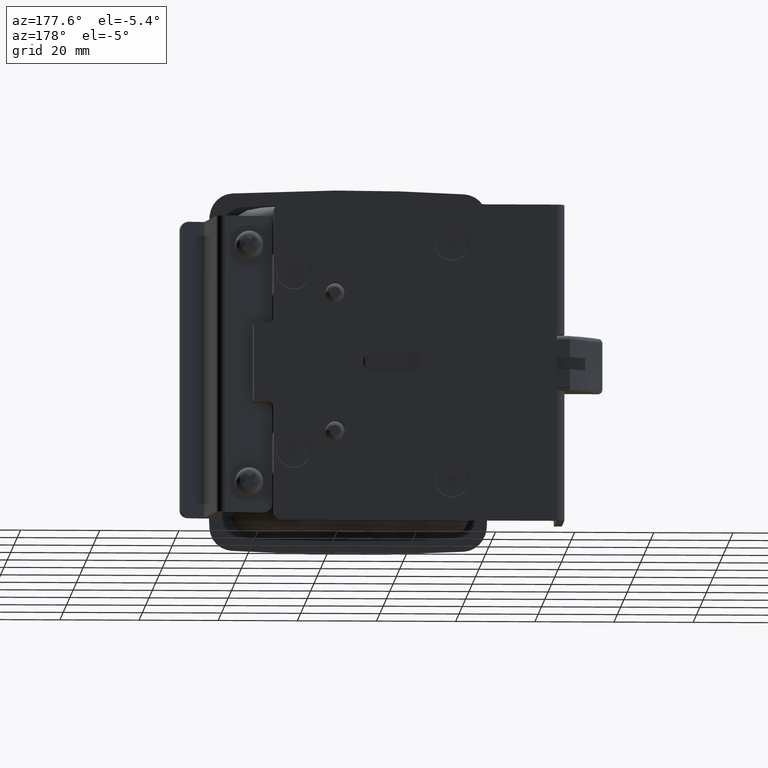
[diagram: clean part render]
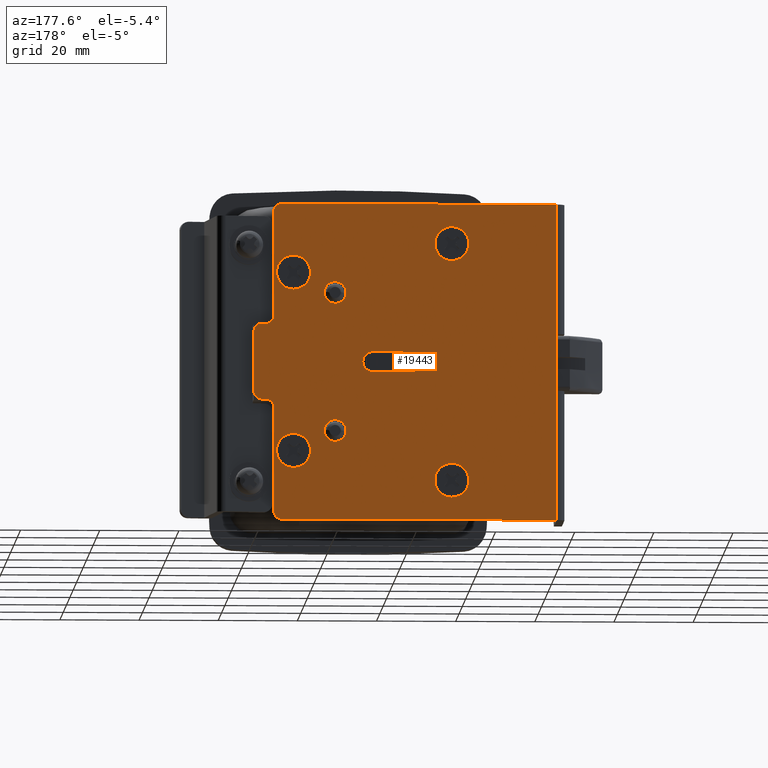
[diagram: same view with one face highlighted and labeled with its STEP entity id]
A machine part, auxiliary view. The second image highlights one B-rep face of the part: STEP entity #19443.
In plain terms, the highlighted face is a freeform B-spline surface patch.
Its self-contained STEP definition (entity closure, byte-faithful):
#12248=CARTESIAN_POINT('',(72.769940963431537,1.213293E-010,-22.092452790120870));
#12249=VERTEX_POINT('',#12248);
#12255=CARTESIAN_POINT('',(68.500000000059615,1.370459E-012,-26.900000000094280));
#12256=VERTEX_POINT('',#12255);
#12257=CARTESIAN_POINT('',(72.769940963431537,1.213293E-010,-22.092452790120866));
#12258=CARTESIAN_POINT('',(72.800000000059782,1.370459E-012,-22.345336284645995));
#12259=CARTESIAN_POINT('',(72.800000000059782,1.370459E-012,-22.600000000094099));
#12260=CARTESIAN_POINT('',(72.800000000059782,1.370459E-012,-26.900000000094291));
#12261=CARTESIAN_POINT('',(68.500000000059615,1.370459E-012,-26.900000000094280));
#12269=(BOUNDED_CURVE()B_SPLINE_CURVE(2,(#12257,#12258,#12259,#12260,#12261),.UNSPECIFIED.,.F.,.U.)B_SPLINE_CURVE_WITH_KNOTS((3,2,3),(0.229562473441631,0.250000000000000,0.500000000000000),.UNSPECIFIED.)CURVE()GEOMETRIC_REPRESENTATION_ITEM()RATIONAL_B_SPLINE_CURVE((0.956026754042817,0.976055948246935,1.0,0.707106781186547,1.0))REPRESENTATION_ITEM(''));
#12270=EDGE_CURVE('',#12249,#12256,#12269,.T.);
#12272=CARTESIAN_POINT('',(64.208020366780687,1.221022E-010,-22.862508721013430));
#12273=VERTEX_POINT('',#12272);
#12274=CARTESIAN_POINT('',(68.500000000059615,1.370459E-012,-26.900000000094280));
#12275=CARTESIAN_POINT('',(64.454963914087344,1.370459E-012,-26.900000000094291));
#12276=CARTESIAN_POINT('',(64.208020366780687,1.221022E-010,-22.862508721013437));
#12284=(BOUNDED_CURVE()B_SPLINE_CURVE(2,(#12274,#12275,#12276),.UNSPECIFIED.,.F.,.U.)B_SPLINE_CURVE_WITH_KNOTS((3,3),(0.500000000000000,0.739332962168635),.UNSPECIFIED.)CURVE()GEOMETRIC_REPRESENTATION_ITEM()RATIONAL_B_SPLINE_CURVE((1.0,0.719603993369081,0.976072041516034))REPRESENTATION_ITEM(''));
#12285=EDGE_CURVE('',#12256,#12273,#12284,.T.);
#12359=CARTESIAN_POINT('',(68.500000000059615,1.370459E-012,-18.300000000093910));
#12360=VERTEX_POINT('',#12359);
#12361=CARTESIAN_POINT('',(64.208020366780687,1.221022E-010,-22.862508721013434));
#12362=CARTESIAN_POINT('',(64.200000000059433,1.370459E-012,-22.731376883192667));
#12363=CARTESIAN_POINT('',(64.200000000059433,1.370459E-012,-22.600000000094099));
#12364=CARTESIAN_POINT('',(64.200000000059447,1.370459E-012,-18.300000000093920));
#12365=CARTESIAN_POINT('',(68.500000000059615,1.370459E-012,-18.300000000093910));
#12373=(BOUNDED_CURVE()B_SPLINE_CURVE(2,(#12361,#12362,#12363,#12364,#12365),.UNSPECIFIED.,.F.,.U.)B_SPLINE_CURVE_WITH_KNOTS((3,2,3),(0.739332962168634,0.750000000000000,1.0),.UNSPECIFIED.)CURVE()GEOMETRIC_REPRESENTATION_ITEM()RATIONAL_B_SPLINE_CURVE((0.976072041516033,0.987502787817466,1.0,0.707106781186547,1.0))REPRESENTATION_ITEM(''));
#12374=EDGE_CURVE('',#12273,#12360,#12373,.T.);
#12376=CARTESIAN_POINT('',(68.500000000059615,1.370459E-012,-18.300000000093910));
#12377=CARTESIAN_POINT('',(72.319150459966295,1.370459E-012,-18.300000000093917));
#12378=CARTESIAN_POINT('',(72.769940963431537,1.213293E-010,-22.092452790120870));
#12386=(BOUNDED_CURVE()B_SPLINE_CURVE(2,(#12376,#12377,#12378),.UNSPECIFIED.,.F.,.U.)B_SPLINE_CURVE_WITH_KNOTS((3,3),(0.0,0.229562473441631),.UNSPECIFIED.)CURVE()GEOMETRIC_REPRESENTATION_ITEM()RATIONAL_B_SPLINE_CURVE((1.0,0.731050832939612,0.956026754042816))REPRESENTATION_ITEM(''));
#12387=EDGE_CURVE('',#12360,#12249,#12386,.T.);
#12620=CARTESIAN_POINT('',(32.769940963431480,1.213367E-010,-29.492452790120868));
#12621=VERTEX_POINT('',#12620);
#12627=CARTESIAN_POINT('',(28.500000000059551,1.370459E-012,-34.300000000094279));
#12628=VERTEX_POINT('',#12627);
#12629=CARTESIAN_POINT('',(32.769940963431480,1.213367E-010,-29.492452790120865));
#12630=CARTESIAN_POINT('',(32.800000000059740,1.370459E-012,-29.745336284646001));
#12631=CARTESIAN_POINT('',(32.800000000059732,1.370459E-012,-30.000000000094101));
#12632=CARTESIAN_POINT('',(32.800000000059725,1.370459E-012,-34.300000000094279));
#12633=CARTESIAN_POINT('',(28.500000000059551,1.370459E-012,-34.300000000094279));
#12641=(BOUNDED_CURVE()B_SPLINE_CURVE(2,(#12629,#12630,#12631,#12632,#12633),.UNSPECIFIED.,.F.,.U.)B_SPLINE_CURVE_WITH_KNOTS((3,2,3),(0.229562473441631,0.250000000000000,0.500000000000000),.UNSPECIFIED.)CURVE()GEOMETRIC_REPRESENTATION_ITEM()RATIONAL_B_SPLINE_CURVE((0.956026754042816,0.976055948246935,1.0,0.707106781186547,1.0))REPRESENTATION_ITEM(''));
#12642=EDGE_CURVE('',#12621,#12628,#12641,.T.);
#12644=CARTESIAN_POINT('',(24.208020366780620,1.221044E-010,-30.262508721013429));
#12645=VERTEX_POINT('',#12644);
#12646=CARTESIAN_POINT('',(28.500000000059551,1.370459E-012,-34.300000000094279));
#12647=CARTESIAN_POINT('',(24.454963914087273,1.370459E-012,-34.300000000094272));
#12648=CARTESIAN_POINT('',(24.208020366780623,1.221044E-010,-30.262508721013436));
#12656=(BOUNDED_CURVE()B_SPLINE_CURVE(2,(#12646,#12647,#12648),.UNSPECIFIED.,.F.,.U.)B_SPLINE_CURVE_WITH_KNOTS((3,3),(0.500000000000000,0.739332962168635),.UNSPECIFIED.)CURVE()GEOMETRIC_REPRESENTATION_ITEM()RATIONAL_B_SPLINE_CURVE((1.0,0.719603993369081,0.976072041516034))REPRESENTATION_ITEM(''));
#12657=EDGE_CURVE('',#12628,#12645,#12656,.T.);
#12731=CARTESIAN_POINT('',(28.500000000059551,1.370459E-012,-25.700000000093919));
#12732=VERTEX_POINT('',#12731);
#12733=CARTESIAN_POINT('',(24.208020366780627,1.221044E-010,-30.262508721013432));
#12734=CARTESIAN_POINT('',(24.200000000059372,1.370459E-012,-30.131376883192658));
#12735=CARTESIAN_POINT('',(24.200000000059369,1.370459E-012,-30.000000000094101));
#12736=CARTESIAN_POINT('',(24.200000000059372,1.370459E-012,-25.700000000093915));
#12737=CARTESIAN_POINT('',(28.500000000059551,1.370459E-012,-25.700000000093919));
#12745=(BOUNDED_CURVE()B_SPLINE_CURVE(2,(#12733,#12734,#12735,#12736,#12737),.UNSPECIFIED.,.F.,.U.)B_SPLINE_CURVE_WITH_KNOTS((3,2,3),(0.739332962168634,0.750000000000000,1.0),.UNSPECIFIED.)CURVE()GEOMETRIC_REPRESENTATION_ITEM()RATIONAL_B_SPLINE_CURVE((0.976072041516033,0.987502787817466,1.0,0.707106781186547,1.0))REPRESENTATION_ITEM(''));
#12746=EDGE_CURVE('',#12645,#12732,#12745,.T.);
#12748=CARTESIAN_POINT('',(28.500000000059551,1.370459E-012,-25.700000000093919));
#12749=CARTESIAN_POINT('',(32.319150459966259,1.370459E-012,-25.700000000093915));
#12750=CARTESIAN_POINT('',(32.769940963431480,1.213367E-010,-29.492452790120865));
#12758=(BOUNDED_CURVE()B_SPLINE_CURVE(2,(#12748,#12749,#12750),.UNSPECIFIED.,.F.,.U.)B_SPLINE_CURVE_WITH_KNOTS((3,3),(0.0,0.229562473441631),.UNSPECIFIED.)CURVE()GEOMETRIC_REPRESENTATION_ITEM()RATIONAL_B_SPLINE_CURVE((1.0,0.731050832939612,0.956026754042816))REPRESENTATION_ITEM(''));
#12759=EDGE_CURVE('',#12732,#12621,#12758,.T.);
#12986=CARTESIAN_POINT('',(72.786744535154554,1.082423E-010,22.262625887639889));
#12987=VERTEX_POINT('',#12986);
#12993=CARTESIAN_POINT('',(68.500000000059615,1.370459E-012,18.300000000093910));
#12994=VERTEX_POINT('',#12993);
#12995=CARTESIAN_POINT('',(68.500000000059615,1.370459E-012,18.300000000093910));
#12996=CARTESIAN_POINT('',(72.474879112671957,1.370459E-012,18.300000000093920));
#12997=CARTESIAN_POINT('',(72.786744535154554,1.082423E-010,22.262625887639881));
#13005=(BOUNDED_CURVE()B_SPLINE_CURVE(2,(#12995,#12996,#12997),.UNSPECIFIED.,.F.,.U.)B_SPLINE_CURVE_WITH_KNOTS((3,3),(0.0,0.236331300567498),.UNSPECIFIED.)CURVE()GEOMETRIC_REPRESENTATION_ITEM()RATIONAL_B_SPLINE_CURVE((1.0,0.723120658681664,0.969723356035604))REPRESENTATION_ITEM(''));
#13006=EDGE_CURVE('',#12994,#12987,#13005,.T.);
#13008=CARTESIAN_POINT('',(64.213255464964675,1.082405E-010,22.937374112548309));
#13009=VERTEX_POINT('',#13008);
#13010=CARTESIAN_POINT('',(64.213255464964675,1.082405E-010,22.937374112548309));
#13011=CARTESIAN_POINT('',(64.200000000059433,1.370459E-012,22.768947461046945));
#13012=CARTESIAN_POINT('',(64.200000000059433,1.370459E-012,22.600000000094099));
#13013=CARTESIAN_POINT('',(64.200000000059447,1.370459E-012,18.300000000093920));
#13014=CARTESIAN_POINT('',(68.500000000059615,1.370459E-012,18.300000000093910));
#13022=(BOUNDED_CURVE()B_SPLINE_CURVE(2,(#13010,#13011,#13012,#13013,#13014),.UNSPECIFIED.,.F.,.U.)B_SPLINE_CURVE_WITH_KNOTS((3,2,3),(0.736331300567498,0.750000000000000,1.0),.UNSPECIFIED.)CURVE()GEOMETRIC_REPRESENTATION_ITEM()RATIONAL_B_SPLINE_CURVE((0.969723356035604,0.983986122504884,1.0,0.707106781186547,1.0))REPRESENTATION_ITEM(''));
#13023=EDGE_CURVE('',#13009,#12994,#13022,.T.);
#13099=CARTESIAN_POINT('',(68.500000000059615,1.370459E-012,26.900000000094280));
#13100=VERTEX_POINT('',#13099);
#13101=CARTESIAN_POINT('',(68.500000000059615,1.370459E-012,26.900000000094280));
#13102=CARTESIAN_POINT('',(64.525120887447258,1.370459E-012,26.900000000094280));
#13103=CARTESIAN_POINT('',(64.213255464964675,1.082405E-010,22.937374112548309));
#13111=(BOUNDED_CURVE()B_SPLINE_CURVE(2,(#13101,#13102,#13103),.UNSPECIFIED.,.F.,.U.)B_SPLINE_CURVE_WITH_KNOTS((3,3),(0.500000000000000,0.736331300567498),.UNSPECIFIED.)CURVE()GEOMETRIC_REPRESENTATION_ITEM()RATIONAL_B_SPLINE_CURVE((1.0,0.723120658681664,0.969723356035605))REPRESENTATION_ITEM(''));
#13112=EDGE_CURVE('',#13100,#13009,#13111,.T.);
#13114=CARTESIAN_POINT('',(72.786744535154554,1.082423E-010,22.262625887639889));
#13115=CARTESIAN_POINT('',(72.800000000059782,1.370459E-012,22.431052539141245));
#13116=CARTESIAN_POINT('',(72.800000000059782,1.370459E-012,22.600000000094099));
#13117=CARTESIAN_POINT('',(72.800000000059782,1.370459E-012,26.900000000094291));
#13118=CARTESIAN_POINT('',(68.500000000059615,1.370459E-012,26.900000000094280));
#13126=(BOUNDED_CURVE()B_SPLINE_CURVE(2,(#13114,#13115,#13116,#13117,#13118),.UNSPECIFIED.,.F.,.U.)B_SPLINE_CURVE_WITH_KNOTS((3,2,3),(0.236331300567498,0.250000000000000,0.500000000000000),.UNSPECIFIED.)CURVE()GEOMETRIC_REPRESENTATION_ITEM()RATIONAL_B_SPLINE_CURVE((0.969723356035604,0.983986122504883,1.0,0.707106781186547,1.0))REPRESENTATION_ITEM(''));
#13127=EDGE_CURVE('',#12987,#13100,#13126,.T.);
#13350=CARTESIAN_POINT('',(32.786744535154497,1.082444E-010,29.662625887639880));
#13351=VERTEX_POINT('',#13350);
#13357=CARTESIAN_POINT('',(28.500000000059551,1.370459E-012,25.700000000093919));
#13358=VERTEX_POINT('',#13357);
#13359=CARTESIAN_POINT('',(28.500000000059551,1.370459E-012,25.700000000093919));
#13360=CARTESIAN_POINT('',(32.474879112671914,1.370459E-012,25.700000000093926));
#13361=CARTESIAN_POINT('',(32.786744535154497,1.082444E-010,29.662625887639884));
#13369=(BOUNDED_CURVE()B_SPLINE_CURVE(2,(#13359,#13360,#13361),.UNSPECIFIED.,.F.,.U.)B_SPLINE_CURVE_WITH_KNOTS((3,3),(0.0,0.236331300567498),.UNSPECIFIED.)CURVE()GEOMETRIC_REPRESENTATION_ITEM()RATIONAL_B_SPLINE_CURVE((1.0,0.723120658681664,0.969723356035604))REPRESENTATION_ITEM(''));
#13370=EDGE_CURVE('',#13358,#13351,#13369,.T.);
#13372=CARTESIAN_POINT('',(24.213255464964600,1.082442E-010,30.337374112548311));
#13373=VERTEX_POINT('',#13372);
#13374=CARTESIAN_POINT('',(24.213255464964604,1.082442E-010,30.337374112548311));
#13375=CARTESIAN_POINT('',(24.200000000059372,1.370459E-012,30.168947461046955));
#13376=CARTESIAN_POINT('',(24.200000000059369,1.370459E-012,30.000000000094101));
#13377=CARTESIAN_POINT('',(24.200000000059372,1.370459E-012,25.700000000093915));
#13378=CARTESIAN_POINT('',(28.500000000059551,1.370459E-012,25.700000000093919));
#13386=(BOUNDED_CURVE()B_SPLINE_CURVE(2,(#13374,#13375,#13376,#13377,#13378),.UNSPECIFIED.,.F.,.U.)B_SPLINE_CURVE_WITH_KNOTS((3,2,3),(0.736331300567498,0.750000000000000,1.0),.UNSPECIFIED.)CURVE()GEOMETRIC_REPRESENTATION_ITEM()RATIONAL_B_SPLINE_CURVE((0.969723356035604,0.983986122504883,1.0,0.707106781186547,1.0))REPRESENTATION_ITEM(''));
#13387=EDGE_CURVE('',#13373,#13358,#13386,.T.);
#13463=CARTESIAN_POINT('',(28.500000000059551,1.370459E-012,34.300000000094279));
#13464=VERTEX_POINT('',#13463);
#13465=CARTESIAN_POINT('',(28.500000000059551,1.370459E-012,34.300000000094279));
#13466=CARTESIAN_POINT('',(24.525120887447176,1.370459E-012,34.300000000094286));
#13467=CARTESIAN_POINT('',(24.213255464964607,1.082442E-010,30.337374112548311));
#13475=(BOUNDED_CURVE()B_SPLINE_CURVE(2,(#13465,#13466,#13467),.UNSPECIFIED.,.F.,.U.)B_SPLINE_CURVE_WITH_KNOTS((3,3),(0.500000000000000,0.736331300567498),.UNSPECIFIED.)CURVE()GEOMETRIC_REPRESENTATION_ITEM()RATIONAL_B_SPLINE_CURVE((1.0,0.723120658681664,0.969723356035605))REPRESENTATION_ITEM(''));
#13476=EDGE_CURVE('',#13464,#13373,#13475,.T.);
#13478=CARTESIAN_POINT('',(32.786744535154497,1.082444E-010,29.662625887639884));
#13479=CARTESIAN_POINT('',(32.800000000059732,1.370459E-012,29.831052539141250));
#13480=CARTESIAN_POINT('',(32.800000000059732,1.370459E-012,30.000000000094101));
#13481=CARTESIAN_POINT('',(32.800000000059725,1.370459E-012,34.300000000094279));
#13482=CARTESIAN_POINT('',(28.500000000059551,1.370459E-012,34.300000000094279));
#13490=(BOUNDED_CURVE()B_SPLINE_CURVE(2,(#13478,#13479,#13480,#13481,#13482),.UNSPECIFIED.,.F.,.U.)B_SPLINE_CURVE_WITH_KNOTS((3,2,3),(0.236331300567498,0.250000000000000,0.500000000000000),.UNSPECIFIED.)CURVE()GEOMETRIC_REPRESENTATION_ITEM()RATIONAL_B_SPLINE_CURVE((0.969723356035604,0.983986122504883,1.0,0.707106781186547,1.0))REPRESENTATION_ITEM(''));
#13491=EDGE_CURVE('',#13351,#13464,#13490,.T.);
#13714=CARTESIAN_POINT('',(55.258477332329093,2.220793E-013,17.715762513797770));
#13715=VERTEX_POINT('',#13714);
#13721=CARTESIAN_POINT('',(58.000000000059600,2.220446E-013,20.250000000094101));
#13722=VERTEX_POINT('',#13721);
#13723=CARTESIAN_POINT('',(58.000000000059600,2.220446E-013,20.250000000094101));
#13724=CARTESIAN_POINT('',(55.457926148840542,2.220446E-013,20.250000000094104));
#13725=CARTESIAN_POINT('',(55.258477332329086,2.220793E-013,17.715762513797774));
#13733=(BOUNDED_CURVE()B_SPLINE_CURVE(2,(#13723,#13724,#13725),.UNSPECIFIED.,.F.,.U.)B_SPLINE_CURVE_WITH_KNOTS((3,3),(0.0,0.236331300576229),.UNSPECIFIED.)CURVE()GEOMETRIC_REPRESENTATION_ITEM()RATIONAL_B_SPLINE_CURVE((1.0,0.723120658671436,0.969723356053824))REPRESENTATION_ITEM(''));
#13734=EDGE_CURVE('',#13722,#13715,#13733,.T.);
#13736=CARTESIAN_POINT('',(60.741522667790122,2.220793E-013,17.284237486390431));
#13737=VERTEX_POINT('',#13736);
#13738=CARTESIAN_POINT('',(60.741522667790122,2.220793E-013,17.284237486390435));
#13739=CARTESIAN_POINT('',(60.750000000059600,2.220446E-013,17.391952205368813));
#13740=CARTESIAN_POINT('',(60.750000000059600,2.220446E-013,17.500000000094101));
#13741=CARTESIAN_POINT('',(60.750000000059600,2.220446E-013,20.250000000094104));
#13742=CARTESIAN_POINT('',(58.000000000059600,2.220446E-013,20.250000000094101));
#13750=(BOUNDED_CURVE()B_SPLINE_CURVE(2,(#13738,#13739,#13740,#13741,#13742),.UNSPECIFIED.,.F.,.U.)B_SPLINE_CURVE_WITH_KNOTS((3,2,3),(0.736331300576229,0.750000000000000,1.0),.UNSPECIFIED.)CURVE()GEOMETRIC_REPRESENTATION_ITEM()RATIONAL_B_SPLINE_CURVE((0.969723356053824,0.983986122515112,1.0,0.707106781186548,1.0))REPRESENTATION_ITEM(''));
#13751=EDGE_CURVE('',#13737,#13722,#13750,.T.);
#13827=CARTESIAN_POINT('',(58.000000000059600,2.220446E-013,14.750000000094101));
#13828=VERTEX_POINT('',#13827);
#13829=CARTESIAN_POINT('',(58.000000000059600,2.220446E-013,14.750000000094101));
#13830=CARTESIAN_POINT('',(60.542073851278673,2.220446E-013,14.750000000094099));
#13831=CARTESIAN_POINT('',(60.741522667790122,2.220793E-013,17.284237486390428));
#13839=(BOUNDED_CURVE()B_SPLINE_CURVE(2,(#13829,#13830,#13831),.UNSPECIFIED.,.F.,.U.)B_SPLINE_CURVE_WITH_KNOTS((3,3),(0.500000000000000,0.736331300576229),.UNSPECIFIED.)CURVE()GEOMETRIC_REPRESENTATION_ITEM()RATIONAL_B_SPLINE_CURVE((1.0,0.723120658671435,0.969723356053825))REPRESENTATION_ITEM(''));
#13840=EDGE_CURVE('',#13828,#13737,#13839,.T.);
#13842=CARTESIAN_POINT('',(55.258477332329086,2.220793E-013,17.715762513797774));
#13843=CARTESIAN_POINT('',(55.250000000059600,2.220446E-013,17.608047794819388));
#13844=CARTESIAN_POINT('',(55.250000000059600,2.220446E-013,17.500000000094101));
#13845=CARTESIAN_POINT('',(55.250000000059607,2.220446E-013,14.750000000094108));
#13846=CARTESIAN_POINT('',(58.000000000059600,2.220446E-013,14.750000000094101));
#13854=(BOUNDED_CURVE()B_SPLINE_CURVE(2,(#13842,#13843,#13844,#13845,#13846),.UNSPECIFIED.,.F.,.U.)B_SPLINE_CURVE_WITH_KNOTS((3,2,3),(0.236331300576229,0.250000000000000,0.500000000000000),.UNSPECIFIED.)CURVE()GEOMETRIC_REPRESENTATION_ITEM()RATIONAL_B_SPLINE_CURVE((0.969723356053824,0.983986122515112,1.0,0.707106781186548,1.0))REPRESENTATION_ITEM(''));
#13855=EDGE_CURVE('',#13715,#13828,#13854,.T.);
#13896=CARTESIAN_POINT('',(55.258477332329079,2.220793E-013,-17.284237486202279));
#13897=VERTEX_POINT('',#13896);
#13903=CARTESIAN_POINT('',(58.000000000059600,2.220446E-013,-14.749999999905951));
#13904=VERTEX_POINT('',#13903);
#13905=CARTESIAN_POINT('',(58.000000000059600,2.220446E-013,-14.749999999905951));
#13906=CARTESIAN_POINT('',(55.457926148840528,2.220446E-013,-14.749999999905944));
#13907=CARTESIAN_POINT('',(55.258477332329079,2.220793E-013,-17.284237486202276));
#13915=(BOUNDED_CURVE()B_SPLINE_CURVE(2,(#13905,#13906,#13907),.UNSPECIFIED.,.F.,.U.)B_SPLINE_CURVE_WITH_KNOTS((3,3),(0.0,0.236331300576229),.UNSPECIFIED.)CURVE()GEOMETRIC_REPRESENTATION_ITEM()RATIONAL_B_SPLINE_CURVE((1.0,0.723120658671435,0.969723356053824))REPRESENTATION_ITEM(''));
#13916=EDGE_CURVE('',#13904,#13897,#13915,.T.);
#13918=CARTESIAN_POINT('',(60.741522667790122,2.220793E-013,-17.715762513609629));
#13919=VERTEX_POINT('',#13918);
#13920=CARTESIAN_POINT('',(60.741522667790122,2.220793E-013,-17.715762513609622));
#13921=CARTESIAN_POINT('',(60.750000000059600,2.220446E-013,-17.608047794631236));
#13922=CARTESIAN_POINT('',(60.750000000059600,2.220446E-013,-17.499999999905949));
#13923=CARTESIAN_POINT('',(60.750000000059600,2.220446E-013,-14.749999999905960));
#13924=CARTESIAN_POINT('',(58.000000000059600,2.220446E-013,-14.749999999905951));
#13932=(BOUNDED_CURVE()B_SPLINE_CURVE(2,(#13920,#13921,#13922,#13923,#13924),.UNSPECIFIED.,.F.,.U.)B_SPLINE_CURVE_WITH_KNOTS((3,2,3),(0.736331300576229,0.750000000000000,1.0),.UNSPECIFIED.)CURVE()GEOMETRIC_REPRESENTATION_ITEM()RATIONAL_B_SPLINE_CURVE((0.969723356053824,0.983986122515112,1.0,0.707106781186548,1.0))REPRESENTATION_ITEM(''));
#13933=EDGE_CURVE('',#13919,#13904,#13932,.T.);
#14009=CARTESIAN_POINT('',(58.000000000059600,2.220446E-013,-20.249999999905949));
#14010=VERTEX_POINT('',#14009);
#14011=CARTESIAN_POINT('',(58.000000000059600,2.220446E-013,-20.249999999905949));
#14012=CARTESIAN_POINT('',(60.542073851278673,2.220446E-013,-20.249999999905953));
#14013=CARTESIAN_POINT('',(60.741522667790122,2.220793E-013,-17.715762513609626));
#14021=(BOUNDED_CURVE()B_SPLINE_CURVE(2,(#14011,#14012,#14013),.UNSPECIFIED.,.F.,.U.)B_SPLINE_CURVE_WITH_KNOTS((3,3),(0.500000000000000,0.736331300576229),.UNSPECIFIED.)CURVE()GEOMETRIC_REPRESENTATION_ITEM()RATIONAL_B_SPLINE_CURVE((1.0,0.723120658671435,0.969723356053825))REPRESENTATION_ITEM(''));
#14022=EDGE_CURVE('',#14010,#13919,#14021,.T.);
#14024=CARTESIAN_POINT('',(55.258477332329086,2.220793E-013,-17.284237486202287));
#14025=CARTESIAN_POINT('',(55.250000000059593,2.220446E-013,-17.391952205180665));
#14026=CARTESIAN_POINT('',(55.250000000059600,2.220446E-013,-17.499999999905949));
#14027=CARTESIAN_POINT('',(55.250000000059607,2.220446E-013,-20.249999999905956));
#14028=CARTESIAN_POINT('',(58.000000000059600,2.220446E-013,-20.249999999905949));
#14036=(BOUNDED_CURVE()B_SPLINE_CURVE(2,(#14024,#14025,#14026,#14027,#14028),.UNSPECIFIED.,.F.,.U.)B_SPLINE_CURVE_WITH_KNOTS((3,2,3),(0.236331300576229,0.250000000000000,0.500000000000000),.UNSPECIFIED.)CURVE()GEOMETRIC_REPRESENTATION_ITEM()RATIONAL_B_SPLINE_CURVE((0.969723356053825,0.983986122515112,1.0,0.707106781186548,1.0))REPRESENTATION_ITEM(''));
#14037=EDGE_CURVE('',#13897,#14010,#14036,.T.);
#17991=CARTESIAN_POINT('',(48.500000000059600,2.220446E-013,-2.499999999905925));
#17992=VERTEX_POINT('',#17991);
#17993=CARTESIAN_POINT('',(48.500000000059600,2.886580E-012,2.500000000094075));
#17994=VERTEX_POINT('',#17993);
#17995=CARTESIAN_POINT('',(48.500000000059600,2.220446E-013,-2.499999999905924));
#17996=CARTESIAN_POINT('',(51.000000000059607,2.220446E-013,-2.499999999905924));
#17997=CARTESIAN_POINT('',(51.000000000059600,2.220446E-013,9.407586E-011));
#17998=CARTESIAN_POINT('',(51.000000000059607,2.220446E-013,2.500000000094076));
#17999=CARTESIAN_POINT('',(48.500000000059600,2.886580E-012,2.500000000094075));
#18007=(BOUNDED_CURVE()B_SPLINE_CURVE(2,(#17995,#17996,#17997,#17998,#17999),.UNSPECIFIED.,.F.,.U.)B_SPLINE_CURVE_WITH_KNOTS((3,2,3),(0.0,0.500000000000000,1.0),.UNSPECIFIED.)CURVE()GEOMETRIC_REPRESENTATION_ITEM()RATIONAL_B_SPLINE_CURVE((1.0,0.707106781186548,1.0,0.707106781186548,1.0))REPRESENTATION_ITEM(''));
#18008=EDGE_CURVE('',#17992,#17994,#18007,.T.);
#18047=CARTESIAN_POINT('',(38.500000000059551,2.220446E-013,-2.499999999905925));
#18048=VERTEX_POINT('',#18047);
#18049=CARTESIAN_POINT('',(38.500000000059551,2.220446E-013,-2.499999999905925));
#18050=CARTESIAN_POINT('',(48.500000000059600,2.220446E-013,-2.499999999905925));
#18051=QUASI_UNIFORM_CURVE('',1,(#18049,#18050),.UNSPECIFIED.,.F.,.U.);
#18052=EDGE_CURVE('',#18048,#17992,#18051,.T.);
#18088=CARTESIAN_POINT('',(38.500000000059551,2.220446E-013,2.500000000094075));
#18089=VERTEX_POINT('',#18088);
#18090=CARTESIAN_POINT('',(38.500000000059551,2.220446E-013,2.500000000094076));
#18091=CARTESIAN_POINT('',(36.000000000059551,2.220446E-013,2.500000000094076));
#18092=CARTESIAN_POINT('',(36.000000000059543,2.220446E-013,9.407586E-011));
#18093=CARTESIAN_POINT('',(36.000000000059551,2.220446E-013,-2.499999999905924));
#18094=CARTESIAN_POINT('',(38.500000000059551,2.220446E-013,-2.499999999905924));
#18102=(BOUNDED_CURVE()B_SPLINE_CURVE(2,(#18090,#18091,#18092,#18093,#18094),.UNSPECIFIED.,.F.,.U.)B_SPLINE_CURVE_WITH_KNOTS((3,2,3),(0.0,0.500000000000000,1.0),.UNSPECIFIED.)CURVE()GEOMETRIC_REPRESENTATION_ITEM()RATIONAL_B_SPLINE_CURVE((1.0,0.707106781186548,1.0,0.707106781186548,1.0))REPRESENTATION_ITEM(''));
#18103=EDGE_CURVE('',#18089,#18048,#18102,.T.);
#18136=CARTESIAN_POINT('',(48.500000000059600,2.886580E-012,2.500000000094075));
#18137=CARTESIAN_POINT('',(38.500000000059551,2.220446E-013,2.500000000094075));
#18138=QUASI_UNIFORM_CURVE('',1,(#18136,#18137),.UNSPECIFIED.,.F.,.U.);
#18139=EDGE_CURVE('',#17994,#18089,#18138,.T.);
#18182=CARTESIAN_POINT('',(73.500000000223295,4.151427E-012,-11.599999999905901));
#18183=VERTEX_POINT('',#18182);
#18189=CARTESIAN_POINT('',(75.500000000223295,2.220446E-013,-9.599999999905910));
#18190=VERTEX_POINT('',#18189);
#18191=CARTESIAN_POINT('',(75.500000000223295,2.220446E-013,-9.599999999905910));
#18192=CARTESIAN_POINT('',(73.500000000223295,4.329870E-012,-9.599999999905901));
#18193=CARTESIAN_POINT('',(73.500000000223295,4.151427E-012,-11.599999999905901));
#18201=(BOUNDED_CURVE()B_SPLINE_CURVE(2,(#18191,#18192,#18193),.UNSPECIFIED.,.F.,.U.)CURVE()GEOMETRIC_REPRESENTATION_ITEM()QUASI_UNIFORM_CURVE()RATIONAL_B_SPLINE_CURVE((1.0,0.707106781186548,1.0))REPRESENTATION_ITEM(''));
#18202=EDGE_CURVE('',#18190,#18183,#18201,.T.);
#18243=CARTESIAN_POINT('',(75.500000000223295,2.220446E-013,9.600000000094099));
#18244=VERTEX_POINT('',#18243);
#18250=CARTESIAN_POINT('',(73.500000000223295,4.151427E-012,11.600000000094100));
#18251=VERTEX_POINT('',#18250);
#18252=CARTESIAN_POINT('',(73.500000000223295,4.264371E-012,11.600000000094100));
#18253=CARTESIAN_POINT('',(73.500000000223295,4.264371E-012,9.600000000094099));
#18254=CARTESIAN_POINT('',(75.500000000223295,2.220446E-013,9.600000000094099));
#18262=(BOUNDED_CURVE()B_SPLINE_CURVE(2,(#18252,#18253,#18254),.UNSPECIFIED.,.F.,.U.)CURVE()GEOMETRIC_REPRESENTATION_ITEM()QUASI_UNIFORM_CURVE()RATIONAL_B_SPLINE_CURVE((1.0,0.707106781186548,1.0))REPRESENTATION_ITEM(''));
#18263=EDGE_CURVE('',#18251,#18244,#18262,.T.);
#18278=CARTESIAN_POINT('',(78.500000000223295,2.220446E-013,-7.599999999905911));
#18279=VERTEX_POINT('',#18278);
#18280=CARTESIAN_POINT('',(78.500000000223295,2.220446E-013,7.600000000094090));
#18281=VERTEX_POINT('',#18280);
#18282=CARTESIAN_POINT('',(78.500000000223295,2.220446E-013,-7.599999999905911));
#18283=CARTESIAN_POINT('',(78.500000000223295,2.220446E-013,7.600000000094090));
#18284=QUASI_UNIFORM_CURVE('',1,(#18282,#18283),.UNSPECIFIED.,.F.,.U.);
#18285=EDGE_CURVE('',#18279,#18281,#18284,.T.);
#18323=CARTESIAN_POINT('',(76.500000000223295,2.220446E-013,-9.599999999905910));
#18324=VERTEX_POINT('',#18323);
#18325=CARTESIAN_POINT('',(76.500000000223295,2.220446E-013,-9.599999999905910));
#18326=CARTESIAN_POINT('',(78.500000000223295,2.220446E-013,-9.599999999905911));
#18327=CARTESIAN_POINT('',(78.500000000223295,2.220446E-013,-7.599999999905911));
#18335=(BOUNDED_CURVE()B_SPLINE_CURVE(2,(#18325,#18326,#18327),.UNSPECIFIED.,.F.,.U.)CURVE()GEOMETRIC_REPRESENTATION_ITEM()QUASI_UNIFORM_CURVE()RATIONAL_B_SPLINE_CURVE((1.0,0.707106781186548,1.0))REPRESENTATION_ITEM(''));
#18336=EDGE_CURVE('',#18324,#18279,#18335,.T.);
#18373=CARTESIAN_POINT('',(75.500000000223295,2.220446E-013,-9.599999999905910));
#18374=CARTESIAN_POINT('',(76.500000000223295,2.220446E-013,-9.599999999905910));
#18375=QUASI_UNIFORM_CURVE('',1,(#18373,#18374),.UNSPECIFIED.,.F.,.U.);
#18376=EDGE_CURVE('',#18190,#18324,#18375,.T.);
#18387=CARTESIAN_POINT('',(76.500000000223409,2.220446E-013,9.600000000094099));
#18388=VERTEX_POINT('',#18387);
#18389=CARTESIAN_POINT('',(76.500000000223409,2.220446E-013,9.600000000094099));
#18390=CARTESIAN_POINT('',(75.500000000223295,2.220446E-013,9.600000000094099));
#18391=QUASI_UNIFORM_CURVE('',1,(#18389,#18390),.UNSPECIFIED.,.F.,.U.);
#18392=EDGE_CURVE('',#18388,#18244,#18391,.T.);
#18424=CARTESIAN_POINT('',(78.500000000223295,2.220446E-013,7.600000000094090));
#18425=CARTESIAN_POINT('',(78.500000000223295,2.220446E-013,9.600000000094088));
#18426=CARTESIAN_POINT('',(76.500000000223295,2.220446E-013,9.600000000094088));
#18434=(BOUNDED_CURVE()B_SPLINE_CURVE(2,(#18424,#18425,#18426),.UNSPECIFIED.,.F.,.U.)CURVE()GEOMETRIC_REPRESENTATION_ITEM()QUASI_UNIFORM_CURVE()RATIONAL_B_SPLINE_CURVE((1.0,0.707106781186548,1.0))REPRESENTATION_ITEM(''));
#18435=EDGE_CURVE('',#18281,#18388,#18434,.T.);
#18669=CARTESIAN_POINT('',(2.000000000059545,1.136868E-013,7.200000000050610));
#18670=VERTEX_POINT('',#18669);
#18678=CARTESIAN_POINT('',(1.999999999940495,-1.069225E-011,-7.200000000067830));
#18679=VERTEX_POINT('',#18678);
#18680=CARTESIAN_POINT('',(1.999999999940495,-1.069225E-011,-7.200000000067830));
#18681=CARTESIAN_POINT('',(2.000000000059545,1.136868E-013,7.200000000050610));
#18682=QUASI_UNIFORM_CURVE('',1,(#18680,#18681),.UNSPECIFIED.,.F.,.U.);
#18683=EDGE_CURVE('',#18679,#18670,#18682,.T.);
#18820=CARTESIAN_POINT('',(71.500000000223281,4.038483E-012,40.000000000094047));
#18821=VERTEX_POINT('',#18820);
#18822=CARTESIAN_POINT('',(73.500000000223295,4.151427E-012,38.000000000094047));
#18823=VERTEX_POINT('',#18822);
#18824=CARTESIAN_POINT('',(71.500000000223281,4.038483E-012,40.000000000094047));
#18825=CARTESIAN_POINT('',(73.500000000223295,4.038483E-012,40.000000000094055));
#18826=CARTESIAN_POINT('',(73.500000000223295,4.038483E-012,38.000000000094047));
#18834=(BOUNDED_CURVE()B_SPLINE_CURVE(2,(#18824,#18825,#18826),.UNSPECIFIED.,.F.,.U.)CURVE()GEOMETRIC_REPRESENTATION_ITEM()QUASI_UNIFORM_CURVE()RATIONAL_B_SPLINE_CURVE((1.0,0.707106781186548,1.0))REPRESENTATION_ITEM(''));
#18835=EDGE_CURVE('',#18821,#18823,#18834,.T.);
#18881=CARTESIAN_POINT('',(73.500000000223295,4.151427E-012,-37.999999999905903));
#18882=VERTEX_POINT('',#18881);
#18883=CARTESIAN_POINT('',(71.500000000223281,4.038483E-012,-39.999999999905853));
#18884=VERTEX_POINT('',#18883);
#18885=CARTESIAN_POINT('',(73.500000000223295,4.038483E-012,-37.999999999905853));
#18886=CARTESIAN_POINT('',(73.500000000223295,4.038483E-012,-39.999999999905853));
#18887=CARTESIAN_POINT('',(71.500000000223281,4.038483E-012,-39.999999999905853));
#18895=(BOUNDED_CURVE()B_SPLINE_CURVE(2,(#18885,#18886,#18887),.UNSPECIFIED.,.F.,.U.)CURVE()GEOMETRIC_REPRESENTATION_ITEM()QUASI_UNIFORM_CURVE()RATIONAL_B_SPLINE_CURVE((1.0,0.707106781186548,1.0))REPRESENTATION_ITEM(''));
#18896=EDGE_CURVE('',#18882,#18884,#18895,.T.);
#19055=CARTESIAN_POINT('',(2.000000000059545,1.136868E-013,-39.999999999905903));
#19056=VERTEX_POINT('',#19055);
#19057=CARTESIAN_POINT('',(2.000000000059545,1.136868E-013,-39.999999999905903));
#19058=CARTESIAN_POINT('',(71.500000000223281,4.038483E-012,-39.999999999905853));
#19059=QUASI_UNIFORM_CURVE('',1,(#19057,#19058),.UNSPECIFIED.,.F.,.U.);
#19060=EDGE_CURVE('',#19056,#18884,#19059,.T.);
#19112=CARTESIAN_POINT('',(2.000000000059545,1.136868E-013,40.000000000094047));
#19113=VERTEX_POINT('',#19112);
#19114=CARTESIAN_POINT('',(2.000000000059545,1.136868E-013,40.000000000094047));
#19115=CARTESIAN_POINT('',(71.500000000223281,4.038483E-012,40.000000000094047));
#19116=QUASI_UNIFORM_CURVE('',1,(#19114,#19115),.UNSPECIFIED.,.F.,.U.);
#19117=EDGE_CURVE('',#19113,#18821,#19116,.T.);
#19228=CARTESIAN_POINT('',(1.999999999940495,-1.069225E-011,-7.200000000067830));
#19229=CARTESIAN_POINT('',(2.000000000059545,1.136868E-013,-39.999999999905903));
#19230=QUASI_UNIFORM_CURVE('',1,(#19228,#19229),.UNSPECIFIED.,.F.,.U.);
#19231=EDGE_CURVE('',#18679,#19056,#19230,.T.);
#19251=CARTESIAN_POINT('',(2.000000000059545,1.136868E-013,40.000000000094047));
#19252=CARTESIAN_POINT('',(2.000000000059545,1.136868E-013,7.200000000050610));
#19253=QUASI_UNIFORM_CURVE('',1,(#19251,#19252),.UNSPECIFIED.,.F.,.U.);
#19254=EDGE_CURVE('',#19113,#18670,#19253,.T.);
#19301=CARTESIAN_POINT('',(73.500000000223295,4.151427E-012,-11.599999999905901));
#19302=CARTESIAN_POINT('',(73.500000000223295,4.151427E-012,-37.999999999905903));
#19303=QUASI_UNIFORM_CURVE('',1,(#19301,#19302),.UNSPECIFIED.,.F.,.U.);
#19304=EDGE_CURVE('',#18183,#18882,#19303,.T.);
#19327=CARTESIAN_POINT('',(73.500000000223295,4.151427E-012,38.000000000094047));
#19328=CARTESIAN_POINT('',(73.500000000223295,4.151427E-012,11.600000000094100));
#19329=QUASI_UNIFORM_CURVE('',1,(#19327,#19328),.UNSPECIFIED.,.F.,.U.);
#19330=EDGE_CURVE('',#18823,#18251,#19329,.T.);
#19378=CARTESIAN_POINT('',(82.321174851965594,1.136868E-013,-43.995999844850367));
#19379=CARTESIAN_POINT('',(-1.821176903691690,1.136868E-013,-43.995999844850367));
#19380=CARTESIAN_POINT('',(82.321174851965594,1.136868E-013,43.996001990805738));
#19381=CARTESIAN_POINT('',(-1.821176903691690,1.136868E-013,43.996001990805738));
#19382=B_SPLINE_SURFACE_WITH_KNOTS('',1,1,((#19378,#19380),(#19379,#19381)),.UNSPECIFIED.,.F.,.F.,.U.,(2,2),(2,2),(0.0,84.142351755657288),(0.0,87.992001835656112),.UNSPECIFIED.);
#19383=ORIENTED_EDGE('',*,*,#19330,.T.);
#19384=ORIENTED_EDGE('',*,*,#18263,.T.);
#19385=ORIENTED_EDGE('',*,*,#18392,.F.);
#19386=ORIENTED_EDGE('',*,*,#18435,.F.);
#19387=ORIENTED_EDGE('',*,*,#18285,.F.);
#19388=ORIENTED_EDGE('',*,*,#18336,.F.);
#19389=ORIENTED_EDGE('',*,*,#18376,.F.);
#19390=ORIENTED_EDGE('',*,*,#18202,.T.);
#19391=ORIENTED_EDGE('',*,*,#19304,.T.);
#19392=ORIENTED_EDGE('',*,*,#18896,.T.);
#19393=ORIENTED_EDGE('',*,*,#19060,.F.);
#19394=ORIENTED_EDGE('',*,*,#19231,.F.);
#19395=ORIENTED_EDGE('',*,*,#18683,.T.);
#19396=ORIENTED_EDGE('',*,*,#19254,.F.);
#19397=ORIENTED_EDGE('',*,*,#19117,.T.);
#19398=ORIENTED_EDGE('',*,*,#18835,.T.);
#19399=EDGE_LOOP('',(#19383,#19384,#19385,#19386,#19387,#19388,#19389,#19390,#19391,#19392,#19393,#19394,#19395,#19396,#19397,#19398));
#19400=FACE_OUTER_BOUND('',#19399,.T.);
#19401=ORIENTED_EDGE('',*,*,#18008,.T.);
#19402=ORIENTED_EDGE('',*,*,#18139,.T.);
#19403=ORIENTED_EDGE('',*,*,#18103,.T.);
#19404=ORIENTED_EDGE('',*,*,#18052,.T.);
#19405=EDGE_LOOP('',(#19401,#19402,#19403,#19404));
#19406=FACE_BOUND('',#19405,.T.);
#19407=ORIENTED_EDGE('',*,*,#14022,.T.);
#19408=ORIENTED_EDGE('',*,*,#13933,.T.);
#19409=ORIENTED_EDGE('',*,*,#13916,.T.);
#19410=ORIENTED_EDGE('',*,*,#14037,.T.);
#19411=EDGE_LOOP('',(#19407,#19408,#19409,#19410));
#19412=FACE_BOUND('',#19411,.T.);
#19413=ORIENTED_EDGE('',*,*,#13840,.T.);
#19414=ORIENTED_EDGE('',*,*,#13751,.T.);
#19415=ORIENTED_EDGE('',*,*,#13734,.T.);
#19416=ORIENTED_EDGE('',*,*,#13855,.T.);
#19417=EDGE_LOOP('',(#19413,#19414,#19415,#19416));
#19418=FACE_BOUND('',#19417,.T.);
#19419=ORIENTED_EDGE('',*,*,#13476,.T.);
#19420=ORIENTED_EDGE('',*,*,#13387,.T.);
#19421=ORIENTED_EDGE('',*,*,#13370,.T.);
#19422=ORIENTED_EDGE('',*,*,#13491,.T.);
#19423=EDGE_LOOP('',(#19419,#19420,#19421,#19422));
#19424=FACE_BOUND('',#19423,.T.);
#19425=ORIENTED_EDGE('',*,*,#13112,.T.);
#19426=ORIENTED_EDGE('',*,*,#13023,.T.);
#19427=ORIENTED_EDGE('',*,*,#13006,.T.);
#19428=ORIENTED_EDGE('',*,*,#13127,.T.);
#19429=EDGE_LOOP('',(#19425,#19426,#19427,#19428));
#19430=FACE_BOUND('',#19429,.T.);
#19431=ORIENTED_EDGE('',*,*,#12657,.F.);
#19432=ORIENTED_EDGE('',*,*,#12642,.F.);
#19433=ORIENTED_EDGE('',*,*,#12759,.F.);
#19434=ORIENTED_EDGE('',*,*,#12746,.F.);
#19435=EDGE_LOOP('',(#19431,#19432,#19433,#19434));
#19436=FACE_BOUND('',#19435,.T.);
#19437=ORIENTED_EDGE('',*,*,#12285,.F.);
#19438=ORIENTED_EDGE('',*,*,#12270,.F.);
#19439=ORIENTED_EDGE('',*,*,#12387,.F.);
#19440=ORIENTED_EDGE('',*,*,#12374,.F.);
#19441=EDGE_LOOP('',(#19437,#19438,#19439,#19440));
#19442=FACE_BOUND('',#19441,.T.);
#19443=ADVANCED_FACE('',(#19400,#19406,#19412,#19418,#19424,#19430,#19436,#19442),#19382,.T.);